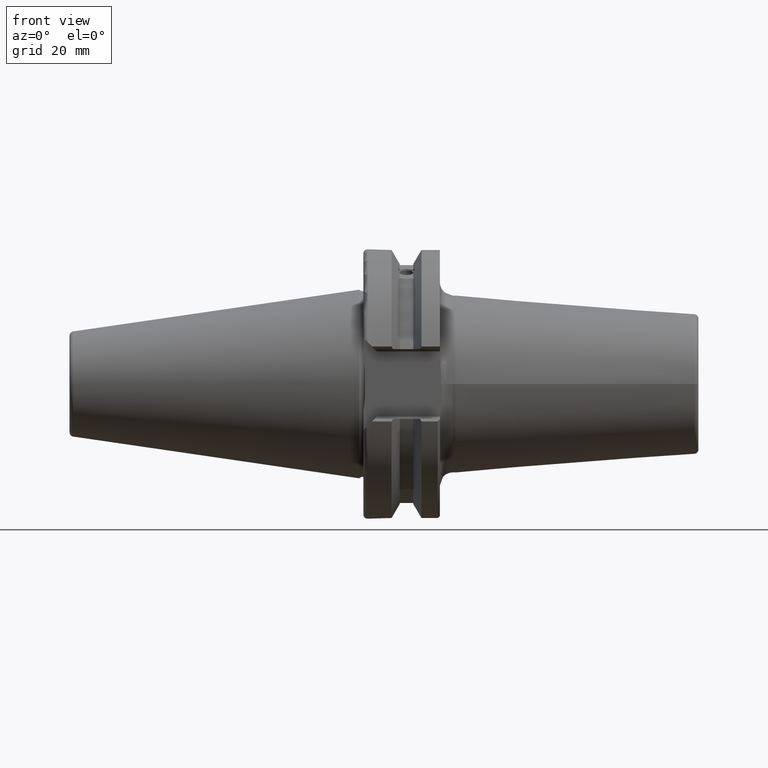
[diagram: clean part render]
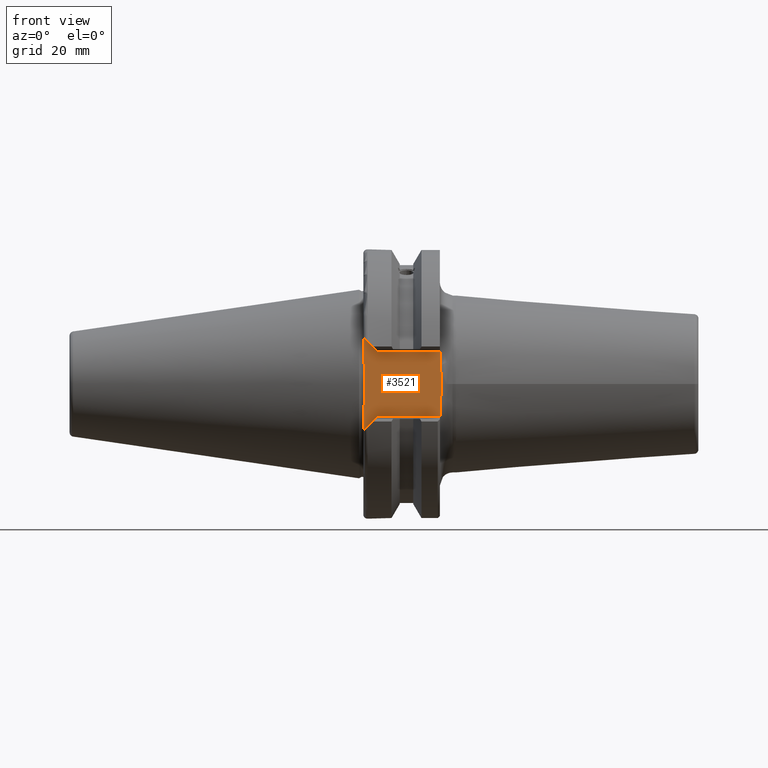
[diagram: same view with one face highlighted and labeled with its STEP entity id]
A machine part, front view. The second image highlights one B-rep face of the part: STEP entity #3521.
In plain terms, the highlighted planar face has unit normal (0, -1, 0).
Its self-contained STEP definition (entity closure, byte-faithful):
#298=CARTESIAN_POINT('',(1.905271322369E1,-2.26E1,-7.69E0));
#299=CARTESIAN_POINT('',(1.905826282544E1,-2.26E1,-7.285199154728E0));
#300=CARTESIAN_POINT('',(1.908639554621E1,-2.26E1,-6.438682886045E0));
#301=CARTESIAN_POINT('',(1.916759025598E1,-2.26E1,-5.065191243183E0));
#302=CARTESIAN_POINT('',(1.927020690146E1,-2.260000000001E1,-3.566064434477E0));
#303=CARTESIAN_POINT('',(1.936927519184E1,-2.259999999998E1,-1.824561641119E0));
#304=CARTESIAN_POINT('',(1.939673200650E1,-2.260000000005E1,
-6.217735494186E-1));
#305=CARTESIAN_POINT('',(1.939673098349E1,-2.260000000005E1,7.046014674781E-5));
#312=CARTESIAN_POINT('',(1.905271322369E1,-2.26E1,-7.69E0));
#1228=DIRECTION('',(7.071067811865E-1,0.E0,7.071067811865E-1));
#1229=VECTOR('',#1228,4.525483399594E0);
#1230=CARTESIAN_POINT('',(1.E0,-2.26E1,-1.089E1));
#1231=LINE('',#1230,#1229);
#1246=DIRECTION('',(1.E0,0.E0,0.E0));
#1247=VECTOR('',#1246,1.485271322372E1);
#1248=CARTESIAN_POINT('',(4.2E0,-2.26E1,7.69E0));
#1249=LINE('',#1248,#1247);
#1250=CARTESIAN_POINT('',(1.905271322372E1,-2.26E1,7.69E0));
#1251=CARTESIAN_POINT('',(1.905826273719E1,-2.26E1,7.285205596013E0));
#1252=CARTESIAN_POINT('',(1.908639472858E1,-2.26E1,6.438703756803E0));
#1253=CARTESIAN_POINT('',(1.916758713863E1,-2.26E1,5.065239355994E0));
#1254=CARTESIAN_POINT('',(1.927020157743E1,-2.260000000001E1,3.566142560436E0));
#1255=CARTESIAN_POINT('',(1.936926999322E1,-2.259999999998E1,1.824675131026E0));
#1256=CARTESIAN_POINT('',(1.939672996049E1,-2.260000000005E1,
6.219056915713E-1));
#1257=CARTESIAN_POINT('',(1.939673098349E1,-2.260000000005E1,
7.046014674781E-5));
#1259=DIRECTION('',(-1.E0,0.E0,0.E0));
#1260=VECTOR('',#1259,1.485271322369E1);
#1261=CARTESIAN_POINT('',(1.905271322369E1,-2.26E1,-7.69E0));
#1262=LINE('',#1261,#1260);
#1263=DIRECTION('',(0.E0,0.E0,1.E0));
#1264=VECTOR('',#1263,4.448726833925E0);
#1265=CARTESIAN_POINT('',(1.E0,-2.26E1,-1.089E1));
#1266=LINE('',#1265,#1264);
#1267=DIRECTION('',(0.E0,0.E0,1.E0));
#1268=VECTOR('',#1267,4.448726833925E0);
#1269=CARTESIAN_POINT('',(1.E0,-2.26E1,6.441273166075E0));
#1270=LINE('',#1269,#1268);
#1271=CARTESIAN_POINT('',(1.905271322372E1,-2.26E1,7.69E0));
#1285=DIRECTION('',(-7.071067811865E-1,0.E0,7.071067811865E-1));
#1286=VECTOR('',#1285,4.525483399594E0);
#1287=CARTESIAN_POINT('',(4.2E0,-2.26E1,7.69E0));
#1288=LINE('',#1287,#1286);
#1352=CARTESIAN_POINT('',(1.4E0,-2.26E1,-3.067155818948E0));
#1353=CARTESIAN_POINT('',(1.370913589767E0,-2.26E1,-3.441771969339E0));
#1354=CARTESIAN_POINT('',(1.302252460281E0,-2.26E1,-4.191164555160E0));
#1355=CARTESIAN_POINT('',(1.168605254163E0,-2.26E1,-5.315014814402E0));
#1356=CARTESIAN_POINT('',(1.059437139980E0,-2.26E1,-6.065682599472E0));
#1357=CARTESIAN_POINT('',(1.E0,-2.26E1,-6.441273166075E0));
#1364=CARTESIAN_POINT('',(1.E0,-2.26E1,6.441273166075E0));
#1365=CARTESIAN_POINT('',(1.059467619942E0,-2.26E1,6.065489992861E0));
#1366=CARTESIAN_POINT('',(1.168666226196E0,-2.26E1,5.314564461304E0));
#1367=CARTESIAN_POINT('',(1.302292634922E0,-2.26E1,4.190765353369E0));
#1368=CARTESIAN_POINT('',(1.370926877965E0,-2.26E1,3.441600825032E0));
#1369=CARTESIAN_POINT('',(1.4E0,-2.26E1,3.067155818948E0));
#1381=DIRECTION('',(0.E0,0.E0,1.E0));
#1382=VECTOR('',#1381,6.134311637896E0);
#1383=CARTESIAN_POINT('',(1.4E0,-2.26E1,-3.067155818948E0));
#1384=LINE('',#1383,#1382);
#1803=CARTESIAN_POINT('',(1.4E0,-2.26E1,-3.067155818948E0));
#1804=CARTESIAN_POINT('',(1.4E0,-2.26E1,3.067155818948E0));
#1805=VERTEX_POINT('',#1803);
#1806=VERTEX_POINT('',#1804);
#1807=VERTEX_POINT('',#1364);
#1808=VERTEX_POINT('',#1357);
#1867=CARTESIAN_POINT('',(1.E0,-2.26E1,-1.089E1));
#1868=VERTEX_POINT('',#1867);
#1869=CARTESIAN_POINT('',(1.E0,-2.26E1,1.089E1));
#1870=VERTEX_POINT('',#1869);
#1955=CARTESIAN_POINT('',(4.2E0,-2.26E1,-7.69E0));
#1956=VERTEX_POINT('',#1955);
#1957=CARTESIAN_POINT('',(4.2E0,-2.26E1,7.69E0));
#1958=VERTEX_POINT('',#1957);
#2099=VERTEX_POINT('',#312);
#2100=VERTEX_POINT('',#1271);
#2101=VERTEX_POINT('',#305);
#3498=CARTESIAN_POINT('',(0.E0,-2.26E1,0.E0));
#3499=DIRECTION('',(0.E0,-1.E0,0.E0));
#3500=DIRECTION('',(1.E0,0.E0,0.E0));
#3501=AXIS2_PLACEMENT_3D('',#3498,#3499,#3500);
#3502=PLANE('',#3501);
#3504=ORIENTED_EDGE('',*,*,#3503,.T.);
#3505=ORIENTED_EDGE('',*,*,#2522,.T.);
#3506=ORIENTED_EDGE('',*,*,#2578,.F.);
#3507=ORIENTED_EDGE('',*,*,#2598,.T.);
#3508=ORIENTED_EDGE('',*,*,#3486,.F.);
#3509=ORIENTED_EDGE('',*,*,#3435,.T.);
#3511=ORIENTED_EDGE('',*,*,#3510,.F.);
#3513=ORIENTED_EDGE('',*,*,#3512,.T.);
#3515=ORIENTED_EDGE('',*,*,#3514,.F.);
#3516=ORIENTED_EDGE('',*,*,#3431,.T.);
#3518=ORIENTED_EDGE('',*,*,#3517,.F.);
#3519=EDGE_LOOP('',(#3504,#3505,#3506,#3507,#3508,#3509,#3511,#3513,#3515,#3516,
#3518));
#3520=FACE_OUTER_BOUND('',#3519,.F.);
#3521=ADVANCED_FACE('',(#3520),#3502,.T.);
#306=B_SPLINE_CURVE_WITH_KNOTS('',3,(#298,#299,#300,#301,#302,#303,#304,#305),
.UNSPECIFIED.,.F.,.F.,(4,1,1,1,1,4),(0.E0,2.E-1,4.E-1,6.E-1,8.E-1,1.E0),
.UNSPECIFIED.);
#1258=B_SPLINE_CURVE_WITH_KNOTS('',3,(#1250,#1251,#1252,#1253,#1254,#1255,#1256,
#1257),.UNSPECIFIED.,.F.,.F.,(4,1,1,1,1,4),(0.E0,2.E-1,4.E-1,6.E-1,8.E-1,1.E0),
.UNSPECIFIED.);
#1358=B_SPLINE_CURVE_WITH_KNOTS('',3,(#1352,#1353,#1354,#1355,#1356,#1357),
.UNSPECIFIED.,.F.,.F.,(4,1,1,4),(0.E0,3.333333333333E-1,6.666666666667E-1,1.E0),
.UNSPECIFIED.);
#1370=B_SPLINE_CURVE_WITH_KNOTS('',3,(#1364,#1365,#1366,#1367,#1368,#1369),
.UNSPECIFIED.,.F.,.F.,(4,1,1,4),(0.E0,3.333333333333E-1,6.666666666667E-1,1.E0),
.UNSPECIFIED.);
#2522=EDGE_CURVE('',#2100,#2101,#1258,.T.);
#2578=EDGE_CURVE('',#2099,#2101,#306,.T.);
#2598=EDGE_CURVE('',#2099,#1956,#1262,.T.);
#3431=EDGE_CURVE('',#1807,#1870,#1270,.T.);
#3435=EDGE_CURVE('',#1868,#1808,#1266,.T.);
#3486=EDGE_CURVE('',#1868,#1956,#1231,.T.);
#3503=EDGE_CURVE('',#1958,#2100,#1249,.T.);
#3510=EDGE_CURVE('',#1805,#1808,#1358,.T.);
#3512=EDGE_CURVE('',#1805,#1806,#1384,.T.);
#3514=EDGE_CURVE('',#1807,#1806,#1370,.T.);
#3517=EDGE_CURVE('',#1958,#1870,#1288,.T.);